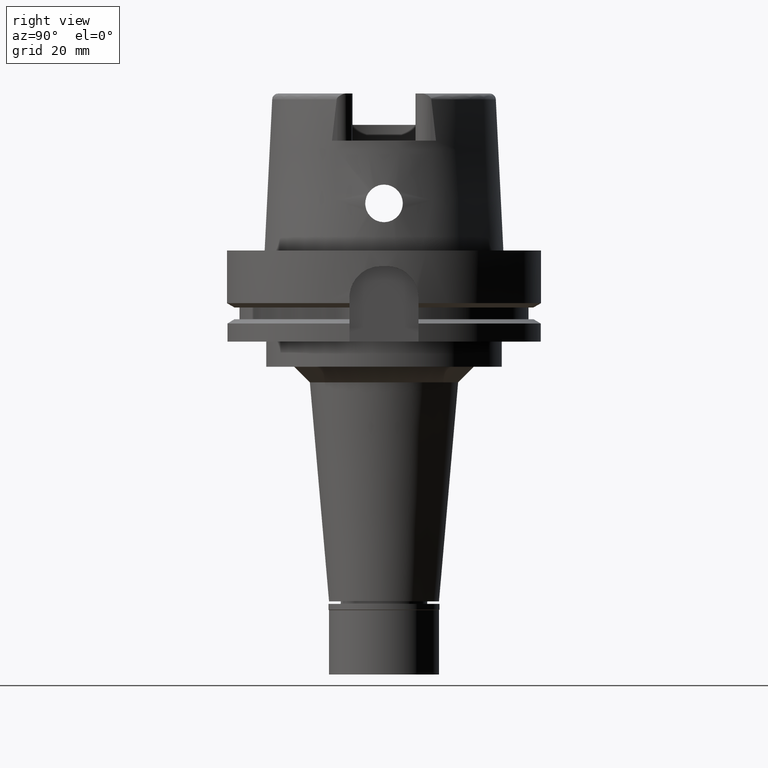
[diagram: clean part render]
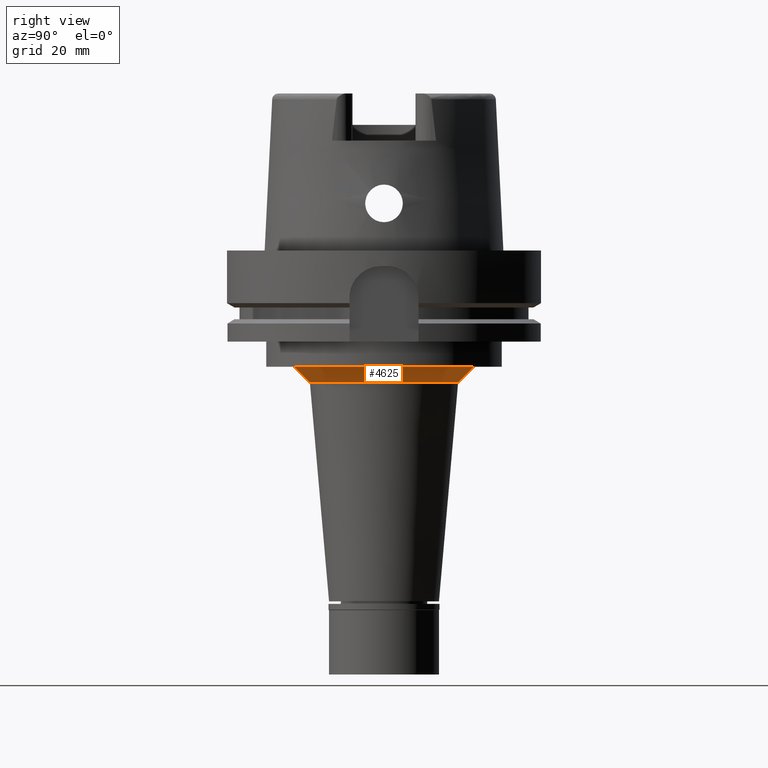
[diagram: same view with one face highlighted and labeled with its STEP entity id]
A machine part, right view. The second image highlights one B-rep face of the part: STEP entity #4625.
In plain terms, the highlighted conical surface has half-angle 45 deg.
Its self-contained STEP definition (entity closure, byte-faithful):
#38 = AXIS2_PLACEMENT_3D ( 'NONE', #5103, #3116, #2264 ) ;
#69 = DIRECTION ( 'NONE',  ( 0.0000000000000000000, -1.000000000000000000, 0.0000000000000000000 ) ) ;
#71 = VERTEX_POINT ( 'NONE', #5561 ) ;
#330 = VERTEX_POINT ( 'NONE', #2739 ) ;
#461 = CIRCLE ( 'NONE', #1180, 23.59795984775999855 ) ;
#488 = FACE_OUTER_BOUND ( 'NONE', #2586, .T. ) ;
#907 = CARTESIAN_POINT ( 'NONE',  ( 0.0000000000000000000, 0.0000000000000000000, -42.00000000000000000 ) ) ;
#932 = DIRECTION ( 'NONE',  ( 0.0000000000000000000, 0.0000000000000000000, 1.000000000000000000 ) ) ;
#1106 = ORIENTED_EDGE ( 'NONE', *, *, #4647, .T. ) ;
#1180 = AXIS2_PLACEMENT_3D ( 'NONE', #907, #932, #69 ) ;
#1353 = VERTEX_POINT ( 'NONE', #4544 ) ;
#1704 = EDGE_CURVE ( 'NONE', #71, #2168, #3916, .T. ) ;
#1733 = DIRECTION ( 'NONE',  ( 0.0000000000000000000, 0.7071067811865969777, -0.7071067811864980568 ) ) ;
#1758 = DIRECTION ( 'NONE',  ( 0.0000000000000000000, 1.000000000000000000, 0.0000000000000000000 ) ) ;
#2086 = ORIENTED_EDGE ( 'NONE', *, *, #3281, .T. ) ;
#2168 = VERTEX_POINT ( 'NONE', #5538 ) ;
#2264 = DIRECTION ( 'NONE',  ( 0.0000000000000000000, 1.000000000000000000, 0.0000000000000000000 ) ) ;
#2511 = EDGE_CURVE ( 'NONE', #330, #1353, #4213, .T. ) ;
#2586 = EDGE_LOOP ( 'NONE', ( #2086, #3745, #1106, #3856 ) ) ;
#2739 = CARTESIAN_POINT ( 'NONE',  ( 0.0000000000000000000, -28.59795984775999855, -37.00000000000000000 ) ) ;
#2908 = AXIS2_PLACEMENT_3D ( 'NONE', #3117, #3941, #1758 ) ;
#3116 = DIRECTION ( 'NONE',  ( 0.0000000000000000000, 0.0000000000000000000, -1.000000000000000000 ) ) ;
#3117 = CARTESIAN_POINT ( 'NONE',  ( 0.0000000000000000000, 0.0000000000000000000, -39.50000000000000000 ) ) ;
#3281 = EDGE_CURVE ( 'NONE', #71, #330, #4923, .T. ) ;
#3384 = CARTESIAN_POINT ( 'NONE',  ( 0.0000000000000000000, -28.59795984775999855, -37.00000000000000000 ) ) ;
#3745 = ORIENTED_EDGE ( 'NONE', *, *, #2511, .T. ) ;
#3856 = ORIENTED_EDGE ( 'NONE', *, *, #1704, .F. ) ;
#3916 = LINE ( 'NONE', #4455, #5383 ) ;
#3941 = DIRECTION ( 'NONE',  ( 0.0000000000000000000, 0.0000000000000000000, 1.000000000000000000 ) ) ;
#4213 = LINE ( 'NONE', #3384, #5396 ) ;
#4455 = CARTESIAN_POINT ( 'NONE',  ( 0.0000000000000000000, 28.59795984775999855, -37.00000000000000000 ) ) ;
#4544 = CARTESIAN_POINT ( 'NONE',  ( 0.0000000000000000000, -23.59795984775999855, -42.00000000000000000 ) ) ;
#4625 = ADVANCED_FACE ( 'NONE', ( #488 ), #4798, .T. ) ;
#4647 = EDGE_CURVE ( 'NONE', #1353, #2168, #461, .T. ) ;
#4798 = CONICAL_SURFACE ( 'NONE', #2908, 26.09795984776000211, 0.7853981633972997312 ) ;
#4886 = DIRECTION ( 'NONE',  ( 0.0000000000000000000, -0.7071067811865969777, -0.7071067811864980568 ) ) ;
#4923 = CIRCLE ( 'NONE', #38, 28.59795984775999855 ) ;
#5103 = CARTESIAN_POINT ( 'NONE',  ( 0.0000000000000000000, 0.0000000000000000000, -37.00000000000000000 ) ) ;
#5383 = VECTOR ( 'NONE', #4886, 1000.000000000000000 ) ;
#5396 = VECTOR ( 'NONE', #1733, 1000.000000000000000 ) ;
#5538 = CARTESIAN_POINT ( 'NONE',  ( 0.0000000000000000000, 23.59795984775999855, -42.00000000000000000 ) ) ;
#5561 = CARTESIAN_POINT ( 'NONE',  ( 0.0000000000000000000, 28.59795984775999855, -37.00000000000000000 ) ) ;